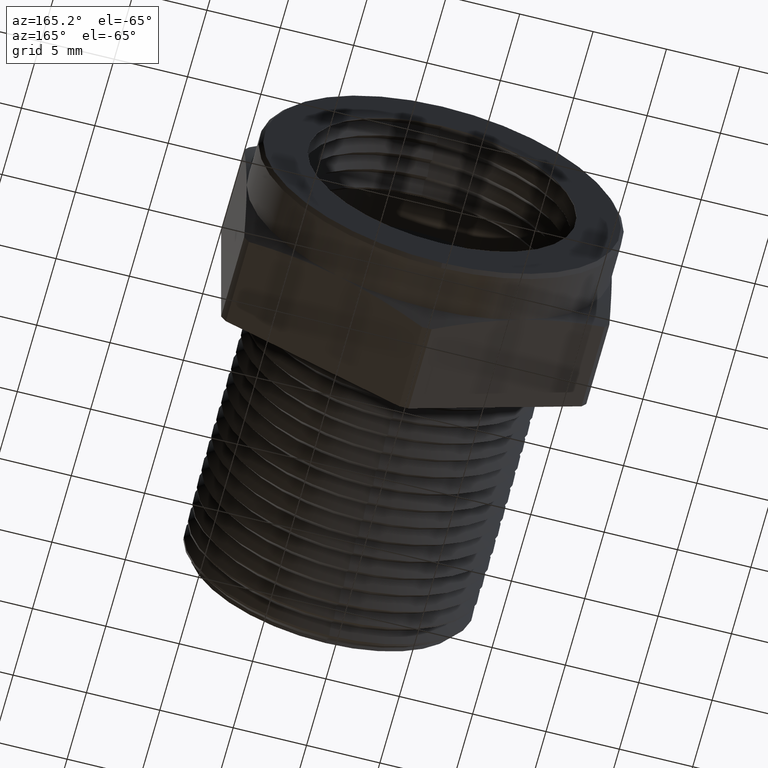
[diagram: clean part render]
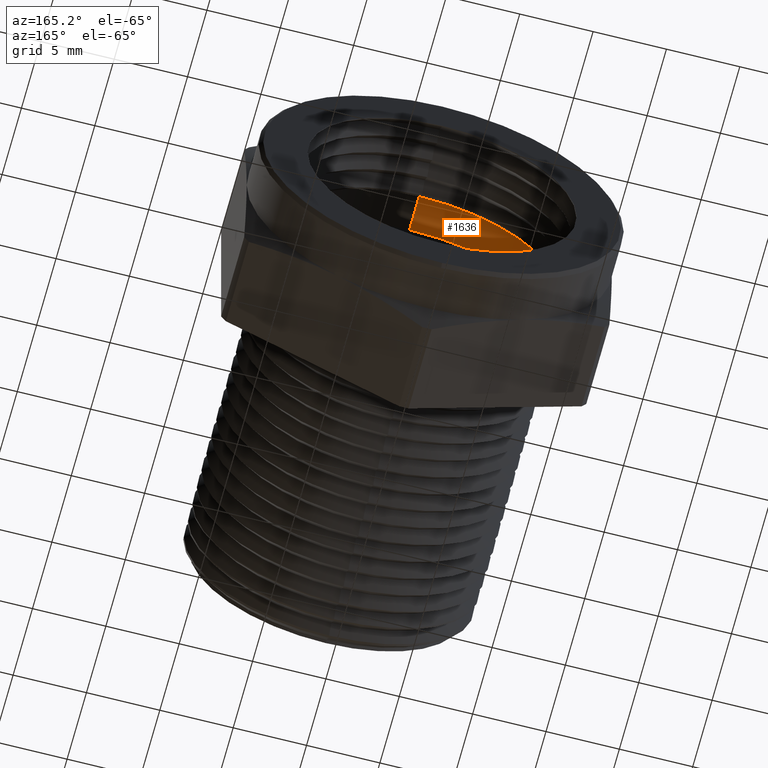
[diagram: same view with one face highlighted and labeled with its STEP entity id]
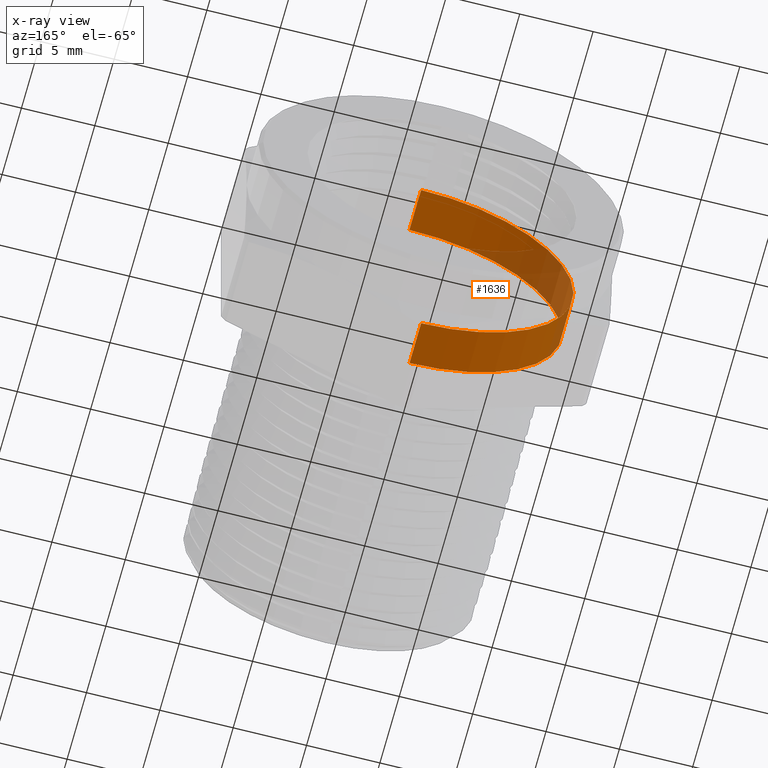
[diagram: x-ray of the same camera — body ghosted, the highlighted face saturated]
A machine part, auxiliary view. The second image highlights one B-rep face of the part: STEP entity #1636.
The next image is the same camera in x-ray: the body ghosted, the highlighted face saturated — about 24% of this face is hidden behind the body in this view.
In plain terms, the highlighted cylindrical surface (partial cylindrical patch) has radius 10.3842 mm, axis along (-0, -1, -0).
Its self-contained STEP definition (entity closure, byte-faithful):
#33 = DIRECTION ( 'NONE',  ( 0.0000000000000000000, 0.0000000000000000000, -1.000000000000000000 ) ) ;
#34 = DIRECTION ( 'NONE',  ( -0.0000000000000000000, -1.000000000000000000, -0.0000000000000000000 ) ) ;
#35 = CARTESIAN_POINT ( 'NONE',  ( 0.0000000000000000000, 0.0000000000000000000, 0.0000000000000000000 ) ) ;
#36 = AXIS2_PLACEMENT_3D ( 'NONE', #35, #34, #33 ) ;
#38 = CYLINDRICAL_SURFACE ( 'NONE', #36, 0.4088249999999999900 ) ;
#39 = FACE_OUTER_BOUND ( 'NONE', #1595, .T. ) ;
#306 = CARTESIAN_POINT ( 'NONE',  ( 0.0000000000000000000, 0.8489999999999999800, -0.4088249999999999900 ) ) ;
#307 = CARTESIAN_POINT ( 'NONE',  ( 5.006662276614166200E-017, 0.8489999999999999800, 0.4088249999999999900 ) ) ;
#345 = CARTESIAN_POINT ( 'NONE',  ( 5.006662276614166800E-017, 0.9670000000000000800, 0.4088250000000000500 ) ) ;
#356 = DIRECTION ( 'NONE',  ( -0.0000000000000000000, -1.000000000000000000, -0.0000000000000000000 ) ) ;
#357 = VECTOR ( 'NONE', #356, 39.37007874015748100 ) ;
#358 = CARTESIAN_POINT ( 'NONE',  ( 0.0000000000000000000, 0.0000000000000000000, -0.4088249999999999900 ) ) ;
#359 = LINE ( 'NONE', #358, #357 ) ;
#388 = DIRECTION ( 'NONE',  ( -0.0000000000000000000, -1.000000000000000000, -0.0000000000000000000 ) ) ;
#389 = VECTOR ( 'NONE', #388, 39.37007874015748100 ) ;
#390 = CARTESIAN_POINT ( 'NONE',  ( 5.006662276614166200E-017, 0.0000000000000000000, 0.4088249999999999900 ) ) ;
#391 = DIRECTION ( 'NONE',  ( 0.0000000000000000000, 0.0000000000000000000, -1.000000000000000000 ) ) ;
#392 = DIRECTION ( 'NONE',  ( -0.0000000000000000000, -1.000000000000000000, -0.0000000000000000000 ) ) ;
#393 = CARTESIAN_POINT ( 'NONE',  ( 0.0000000000000000000, 0.8489999999999999800, 0.0000000000000000000 ) ) ;
#394 = AXIS2_PLACEMENT_3D ( 'NONE', #393, #392, #391 ) ;
#395 = CIRCLE ( 'NONE', #394, 0.4088249999999999900 ) ;
#396 = LINE ( 'NONE', #390, #389 ) ;
#397 = CARTESIAN_POINT ( 'NONE',  ( 0.0000000000000000000, 0.9670000000000000800, -0.4088250000000000500 ) ) ;
#398 = DIRECTION ( 'NONE',  ( 0.0000000000000000000, 0.0000000000000000000, -1.000000000000000000 ) ) ;
#399 = DIRECTION ( 'NONE',  ( -0.0000000000000000000, -1.000000000000000000, -0.0000000000000000000 ) ) ;
#400 = AXIS2_PLACEMENT_3D ( 'NONE', #407, #399, #398 ) ;
#401 = CIRCLE ( 'NONE', #400, 0.4088250000000000500 ) ;
#407 = CARTESIAN_POINT ( 'NONE',  ( 0.0000000000000000000, 0.9670000000000000800, 0.0000000000000000000 ) ) ;
#1317 = ORIENTED_EDGE ( 'NONE', *, *, #1813, .F. ) ;
#1595 = EDGE_LOOP ( 'NONE', ( #1749, #1825, #1822, #1317 ) ) ;
#1636 = ADVANCED_FACE ( 'NONE', ( #39 ), #38, .F. ) ;
#1748 = VERTEX_POINT ( 'NONE', #307 ) ;
#1749 = ORIENTED_EDGE ( 'NONE', *, *, #1820, .F. ) ;
#1750 = VERTEX_POINT ( 'NONE', #306 ) ;
#1813 = EDGE_CURVE ( 'NONE', #1821, #1750, #359, .T. ) ;
#1818 = VERTEX_POINT ( 'NONE', #345 ) ;
#1820 = EDGE_CURVE ( 'NONE', #1818, #1821, #401, .T. ) ;
#1821 = VERTEX_POINT ( 'NONE', #397 ) ;
#1822 = ORIENTED_EDGE ( 'NONE', *, *, #1823, .T. ) ;
#1823 = EDGE_CURVE ( 'NONE', #1748, #1750, #395, .T. ) ;
#1824 = EDGE_CURVE ( 'NONE', #1818, #1748, #396, .T. ) ;
#1825 = ORIENTED_EDGE ( 'NONE', *, *, #1824, .T. ) ;